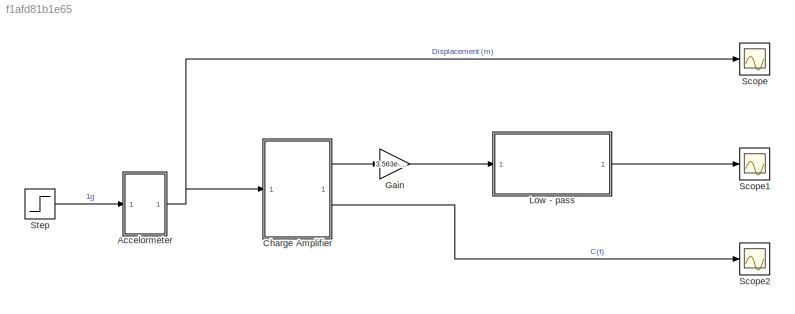
MODEL slx_f1afd81b1e65
KIND model
CONFIG AbsTol = 1e-3
CONFIG EnableMultiTasking = on
CONFIG FixedStep = auto
CONFIG MaxStep = 1e-5
CONFIG MinStep = auto
CONFIG PreLoadFcn = m = 3.600;     % kg\nk = 400;    % N/m\nb = 10;      % Ns/m\nx0=1; %m
CONFIG RelTol = 1e-3
CONFIG SampleTimeConstraint = Unconstrained
CONFIG SolverName = VariableStepAuto
CONFIG StartTime = 0.0
CONFIG StopTime = 0.5
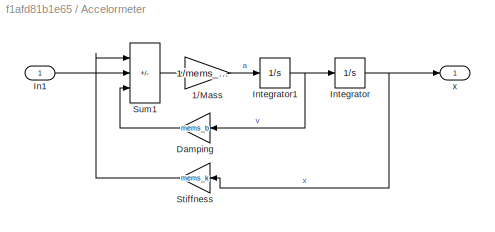
BLOCK [SubSystem] Accelormeter
BLOCK [Gain] Accelormeter/1//Mass 
  Gain = 1/mems_mass
  OutDataTypeStr = Inherit: Same as input
  ParamDataTypeStr = Inherit: Same as input
  SaturateOnIntegerOverflow = on
BLOCK [Gain] Accelormeter/Damping
  Gain = mems_b
  OutDataTypeStr = Inherit: Same as input
  ParamDataTypeStr = Inherit: Same as input
  SaturateOnIntegerOverflow = on
BLOCK [Inport] Accelormeter/In1
BLOCK [Integrator] Accelormeter/Integrator
BLOCK [Integrator] Accelormeter/Integrator1
BLOCK [Gain] Accelormeter/Stiffness
  Gain = mems_k
  OutDataTypeStr = Inherit: Same as input
  ParamDataTypeStr = Inherit: Same as input
  SaturateOnIntegerOverflow = on
BLOCK [Sum] Accelormeter/Sum1
  IconShape = rectangular
  InputSameDT = on
  Inputs = -+-
  OutDataTypeStr = Inherit: Same as first input
  SaturateOnIntegerOverflow = on
BLOCK [Outport] Accelormeter/x
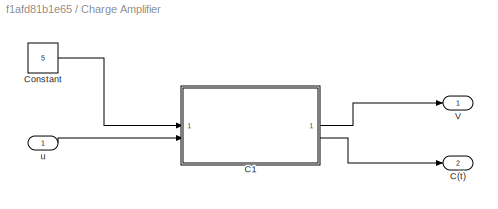
BLOCK [SubSystem] Charge Amplifier
BLOCK [Outport] Charge Amplifier/C(t)
  Port = 2
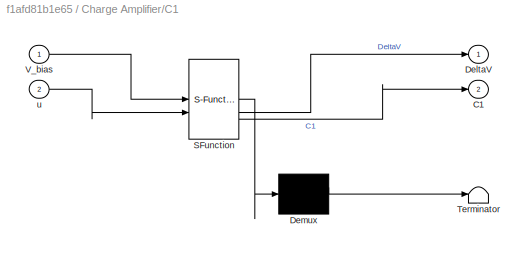
BLOCK [SubSystem] Charge Amplifier/C1
  ErrorFcn = Stateflow.Translate.translate
  PermitHierarchicalResolution = ExplicitOnly
  SFBlockType = MATLAB Function
  TreatAsAtomicUnit = on
BLOCK [Demux] Charge Amplifier/C1/ Demux 
  Outputs = 1
BLOCK [S-Function] Charge Amplifier/C1/ SFunction 
  EnableBusSupport = on
  FunctionName = sf_sfun
  PortCounts = [2 3]
  SFcnIsStateOwnerBlock = off
  SFunctionDeploymentMode = off
  Tag = Stateflow S-Function 2
BLOCK [Terminator] Charge Amplifier/C1/ Terminator 
BLOCK [Outport] Charge Amplifier/C1/C1
  Port = 2
BLOCK [Outport] Charge Amplifier/C1/DeltaV
BLOCK [Inport] Charge Amplifier/C1/V_bias
BLOCK [Inport] Charge Amplifier/C1/u
  Port = 2
BLOCK [Constant] Charge Amplifier/Constant
  Value = 5
BLOCK [Outport] Charge Amplifier/V
BLOCK [Inport] Charge Amplifier/u
BLOCK [Gain] Gain
  Gain = 3.563e-2/1.384
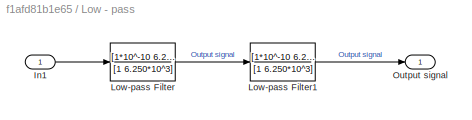
BLOCK [SubSystem] Low - pass
BLOCK [Inport] Low - pass/In1
BLOCK [TransferFcn] Low - pass/Low-pass Filter
  Denominator = [1 6.250*10^3]
  Numerator = [1*10^-10 6.250*10^3]
BLOCK [TransferFcn] Low - pass/Low-pass Filter1
  Denominator = [1 6.250*10^3]
  Numerator = [1*10^-10 6.250*10^3]
BLOCK [Outport] Low - pass/Output signal
BLOCK [Scope] Scope
  Floating = off
  NumInputPorts = 1
  ScopeSpecificationString = Simulink.scopes.TimeScopeBlockCfg('CurrentConfiguration', extmgr.ConfigurationSet(extmgr.Configuration('Core','General UI',true),extmgr.Configuration('Core','Source UI',true),extmgr.Configuration('Sources','WiredSimulink',true),extmgr.Configuration('Visuals','Time Domain',true,'SerializedDisplays',{struct('MinYLimReal','-1.00000','MaxYLimReal','1.00000','YLabelReal','','MinYLimMag','0.00000','MaxY...<+1409ch>
BLOCK [Scope] Scope1
  Floating = off
  NumInputPorts = 1
  ScopeSpecificationString = Simulink.scopes.TimeScopeBlockCfg('CurrentConfiguration', extmgr.ConfigurationSet(extmgr.Configuration('Core','General UI',true),extmgr.Configuration('Core','Source UI',true),extmgr.Configuration('Sources','WiredSimulink',true,'DataLoggingVariableName','ScopeData1'),extmgr.Configuration('Visuals','Time Domain',true,'SerializedDisplays',{struct('MinYLimReal','-0.00446','MaxYLimReal','0.0401','YLabe...<+1650ch>
BLOCK [Scope] Scope2
  Floating = off
  NumInputPorts = 1
  ScopeSpecificationString = Simulink.scopes.TimeScopeBlockCfg('CurrentConfiguration', extmgr.ConfigurationSet(extmgr.Configuration('Core','General UI',true),extmgr.Configuration('Core','Source UI',true),extmgr.Configuration('Sources','WiredSimulink',true,'DataLoggingVariableName','ScopeData1'),extmgr.Configuration('Visuals','Time Domain',true,'SerializedDisplays',{struct('MinYLimReal','0.0000000000003','MaxYLimReal','0.00000...<+1498ch>
BLOCK [Step] Step
  After = 9.81*mems_mass
  SampleTime = 0
  Time = 0.1
LINE Accelormeter/1//Mass :1 -> Accelormeter/Integrator1:1
LINE Accelormeter/Damping:1 -> Accelormeter/Sum1:3
LINE Accelormeter/In1:1 -> Accelormeter/Sum1:2
NET Accelormeter/Integrator1:1 -> Accelormeter/Damping:1, Accelormeter/Integrator:1
NET Accelormeter/Integrator:1 -> Accelormeter/Stiffness:1, Accelormeter/x:1
LINE Accelormeter/Stiffness:1 -> Accelormeter/Sum1:1
LINE Accelormeter/Sum1:1 -> Accelormeter/1//Mass :1
NET Accelormeter:1 -> Charge Amplifier:1, Scope:1
LINE Charge Amplifier/C1:1 -> Charge Amplifier/V:1
LINE Charge Amplifier/C1:2 -> Charge Amplifier/C(t):1
LINE Charge Amplifier/Constant:1 -> Charge Amplifier/C1:1
LINE Charge Amplifier/u:1 -> Charge Amplifier/C1:2
LINE Charge Amplifier:1 -> Gain:1
LINE Charge Amplifier:2 -> Scope2:1
LINE Gain:1 -> Low - pass:1
LINE Low - pass/In1:1 -> Low - pass/Low-pass Filter:1
LINE Low - pass/Low-pass Filter1:1 -> Low - pass/Output signal:1
LINE Low - pass/Low-pass Filter:1 -> Low - pass/Low-pass Filter1:1
LINE Low - pass:1 -> Scope1:1
LINE Step:1 -> Accelormeter:1
note: NET lines group one-source signal fan-out (src -> all destinations, sorted); 1:1 wires keep LINE
CHART Charge Amplifier/C1 states=1 transitions=1
  STATE_LABEL 'eML_blk_kernel()'
  STATE_LABEL 'SCRIPT:\n\nfunction [DeltaV, C1] = DeltaV(V_bias,u)\n\nN=70;\ne=8.854e-12;\nt=25e-6;\nl=810e-6;\nd1=10e-6;\nC2=(e*N*l*t/(d1))*(1-u/d1);\nC1 = (e*N*l*t/(d1))*(1+u/d1); \n\nDeltaV = (V_bias*((C1-C2)/(5.95e-14))) ;\n'
CHART  states=0 transitions=0
